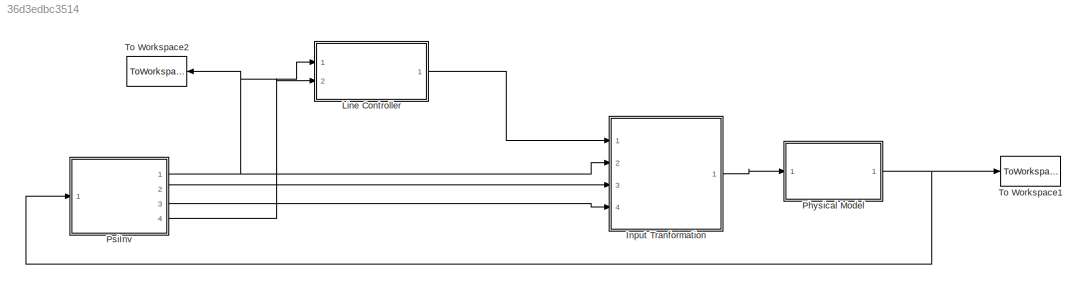
MODEL slx_36d3edbc3514
KIND model
CONFIG AbsTol = auto
CONFIG FixedStep = auto
CONFIG MaxStep = auto
CONFIG MinStep = auto
CONFIG RelTol = 1e-3
CONFIG SampleTimeConstraint = Unconstrained
CONFIG Solver = ode45
CONFIG SolverMode = Auto
CONFIG SolverName = ode45
CONFIG StartTime = 0.0
CONFIG StopTime = 5
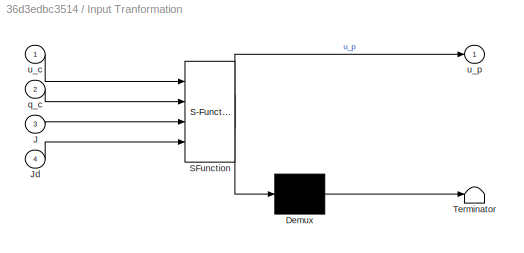
BLOCK [SubSystem] Input Tranformation 
  ErrorFcn = Stateflow.Translate.translate
  PermitHierarchicalResolution = ExplicitOnly
  Ports = [4, 1]
  RequestExecContextInheritance = off
  SFBlockType = MATLAB Function
  TreatAsAtomicUnit = on
BLOCK [Demux] Input Tranformation / Demux 
  Outputs = 1
  Ports = [1, 1]
BLOCK [S-Function] Input Tranformation / SFunction 
  EnableBusSupport = on
  FunctionName = sf_sfun
  PortCounts = [4 2]
  Ports = [4, 2]
  Tag = Stateflow S-Function simulation_3d_line_new 2
BLOCK [Terminator] Input Tranformation / Terminator 
BLOCK [Inport] Input Tranformation /J
  IconDisplay = Port number
  Port = 3
BLOCK [Inport] Input Tranformation /Jd
  IconDisplay = Port number
  Port = 4
BLOCK [Inport] Input Tranformation /q_c
  IconDisplay = Port number
  Port = 2
BLOCK [Inport] Input Tranformation /u_c
  IconDisplay = Port number
BLOCK [Outport] Input Tranformation /u_p
  IconDisplay = Port number
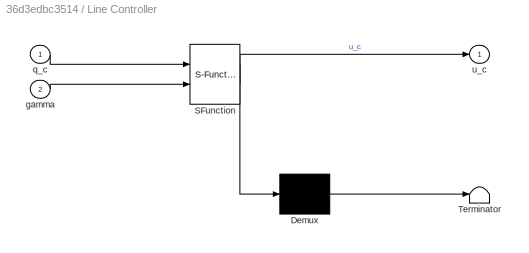
BLOCK [SubSystem] Line Controller
  ErrorFcn = Stateflow.Translate.translate
  PermitHierarchicalResolution = ExplicitOnly
  Ports = [2, 1]
  RequestExecContextInheritance = off
  SFBlockType = MATLAB Function
  TreatAsAtomicUnit = on
BLOCK [Demux] Line Controller/ Demux 
  Outputs = 1
  Ports = [1, 1]
BLOCK [S-Function] Line Controller/ SFunction 
  EnableBusSupport = on
  FunctionName = sf_sfun
  PortCounts = [2 2]
  Ports = [2, 2]
  Tag = Stateflow S-Function simulation_3d_line_new 3
BLOCK [Terminator] Line Controller/ Terminator 
BLOCK [Inport] Line Controller/gamma
  IconDisplay = Port number
  Port = 2
BLOCK [Inport] Line Controller/q_c
  IconDisplay = Port number
BLOCK [Outport] Line Controller/u_c
  IconDisplay = Port number
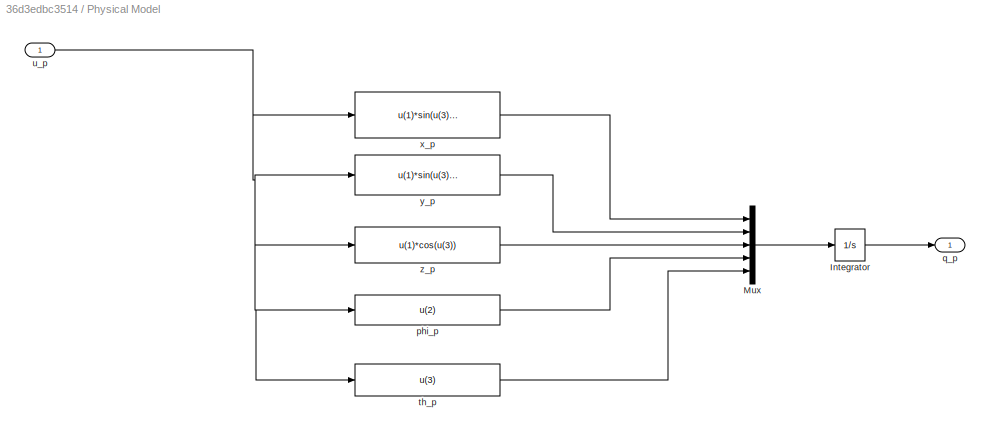
BLOCK [SubSystem] Physical Model
  Ports = [1, 1]
  RequestExecContextInheritance = off
BLOCK [Integrator] Physical Model/Integrator
  InitialCondition = [9 -0.8 -0.5 pi/2 pi/9]
  LowerSaturationLimit = -1000
  Ports = [1, 1]
  UpperSaturationLimit = 1000
BLOCK [Mux] Physical Model/Mux
  DisplayOption = bar
  Inputs = 5
  Ports = [5, 1]
BLOCK [Fcn] Physical Model/phi_p
  Expr = u(2)
BLOCK [Outport] Physical Model/q_p
  IconDisplay = Port number
BLOCK [Fcn] Physical Model/th_p
  Expr = u(3)
BLOCK [Inport] Physical Model/u_p
  IconDisplay = Port number
BLOCK [Fcn] Physical Model/x_p 
  Expr = u(1)*sin(u(3))*cos(u(2))
BLOCK [Fcn] Physical Model/y_p
  Expr = u(1)*sin(u(3))*sin(u(2))
BLOCK [Fcn] Physical Model/z_p
  Expr = u(1)*cos(u(3))
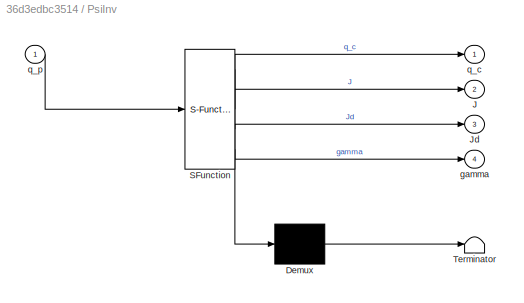
BLOCK [SubSystem] PsiInv
  ErrorFcn = Stateflow.Translate.translate
  PermitHierarchicalResolution = ExplicitOnly
  Ports = [1, 4]
  RequestExecContextInheritance = off
  SFBlockType = MATLAB Function
  TreatAsAtomicUnit = on
BLOCK [Demux] PsiInv/ Demux 
  Outputs = 1
  Ports = [1, 1]
BLOCK [S-Function] PsiInv/ SFunction 
  EnableBusSupport = on
  FunctionName = sf_sfun
  PortCounts = [1 5]
  Ports = [1, 5]
  Tag = Stateflow S-Function simulation_3d_line_new 1
BLOCK [Terminator] PsiInv/ Terminator 
BLOCK [Outport] PsiInv/J
  IconDisplay = Port number
  Port = 2
BLOCK [Outport] PsiInv/Jd
  IconDisplay = Port number
  Port = 3
BLOCK [Outport] PsiInv/gamma
  IconDisplay = Port number
  Port = 4
BLOCK [Outport] PsiInv/q_c
  IconDisplay = Port number
BLOCK [Inport] PsiInv/q_p
  IconDisplay = Port number
BLOCK [ToWorkspace] To Workspace1
  FixptAsFi = on
  MaxDataPoints = inf
  Ports = [1]
  SampleTime = -1
  Save2DSignal = 3-D array (concatenate along third dimension)
  SaveFormat = Timeseries
  VariableName = qp
BLOCK [ToWorkspace] To Workspace2
  FixptAsFi = on
  MaxDataPoints = inf
  Ports = [1]
  SampleTime = -1
  Save2DSignal = 3-D array (concatenate along third dimension)
  SaveFormat = Timeseries
  VariableName = qc
LINE Input Tranformation :1 -> Physical Model:1
LINE Line Controller:1 -> Input Tranformation :1
LINE Physical Model/Integrator:1 -> Physical Model/q_p:1
LINE Physical Model/Mux:1 -> Physical Model/Integrator:1
LINE Physical Model/phi_p:1 -> Physical Model/Mux:4
LINE Physical Model/th_p:1 -> Physical Model/Mux:5
NET Physical Model/u_p:1 -> Physical Model/phi_p:1, Physical Model/th_p:1, Physical Model/x_p :1, Physical Model/y_p:1, Physical Model/z_p:1
LINE Physical Model/x_p :1 -> Physical Model/Mux:1
LINE Physical Model/y_p:1 -> Physical Model/Mux:2
LINE Physical Model/z_p:1 -> Physical Model/Mux:3
NET Physical Model:1 -> PsiInv:1, To Workspace1:1
NET PsiInv:1 -> Input Tranformation :2, Line Controller:1, To Workspace2:1
LINE PsiInv:2 -> Input Tranformation :3
LINE PsiInv:3 -> Input Tranformation :4
LINE PsiInv:4 -> Line Controller:2
note: NET lines group one-source signal fan-out (src -> all destinations, sorted); 1:1 wires keep LINE
CHART PsiInv states=1 transitions=1
  STATE_LABEL 'eML_blk_kernel()'
  STATE_LABEL 'SCRIPT:\nfunction [q_c, J, Jd, gamma]  = PsiInv(q_p)\n     \n    % Find canonical cordinates\n    xc = 10*log(q_p(1)/10);\n    yc = q_p(2)-sin(xc);\n    zc = q_p(3)-cos(xc);\n    \n    % Find transformation Jacobian and its Derivative wrt to xc\n    J = [exp(0.1*xc) 0 0; \n         cos(xc) 1 0;\n        -sin(xc) 0 1];\n    Jd = [0.1*exp(0.1*xc) 0 0; \n          -sin(xc) 0 0;\n          -cos(xc) 0 0];\n      \n   ...<+485ch>'
CHART Input Tranformation
 states=1 transitions=1
  STATE_LABEL 'eML_blk_kernel()'
  STATE_LABEL "SCRIPT:\nfunction u_p = M(u_c,q_c,J,Jd)\n    \n    % Initialization\n    C = zeros(2,3);\n    D = eye(2);\n    M = eye(3);\n    \n    % Construct needed elements of Cartesian tensor\n    e12=[1 0 0]'*[0 1 0];\n    e21=[0 1 0]'*[1 0 0];\n    e33=[0 0 1]'*[0 0 1];\n    \n    % Get canonical angles\n    th_c = q_c(5);\n    phi_c = q_c(4);    \n    \n    % Construct the vector cc and its derivatives\n    cc = [sin(th_c...<+853ch>"
CHART Line Controller states=1 transitions=1
  STATE_LABEL 'eML_blk_kernel()'
  STATE_LABEL 'SCRIPT:\nfunction u_c = LineCon(q_c,gamma)\n \n    K2 = -20*[1;0;0]; \n    V=4;\n    r_c = [0; q_c(2); q_c(3)];\n        \n    v = -1000*r_c - K2;\n\n    v=V*v/norm(v);\n    \n    \n    u_c = [ V/gamma; \n            atan2(v(2),v(1));\n            acos(v(3)/V)];    \n\nend'
